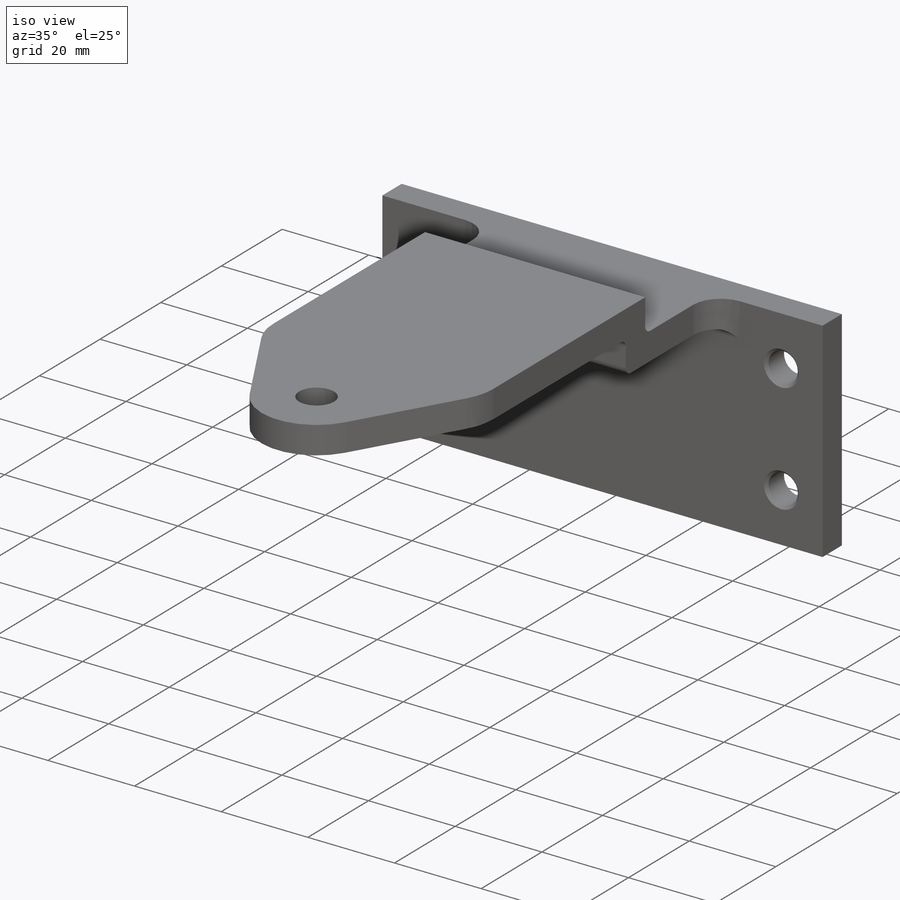
[diagram: iso view]
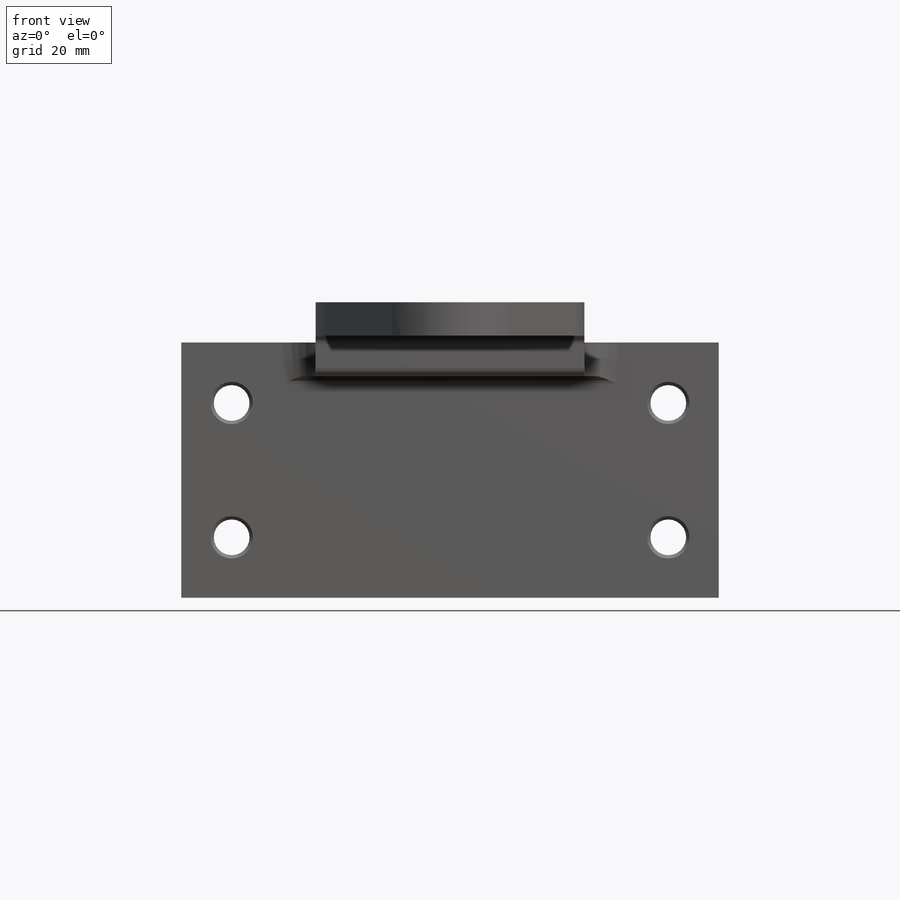
[diagram: front view]
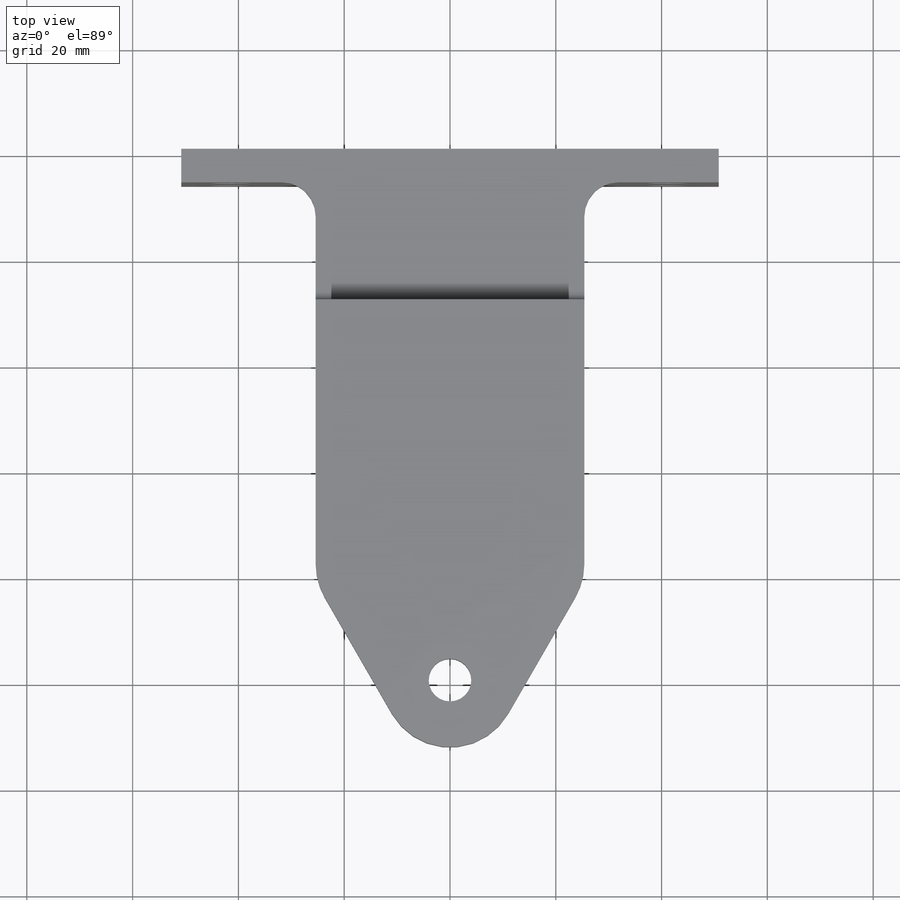
[diagram: top view]
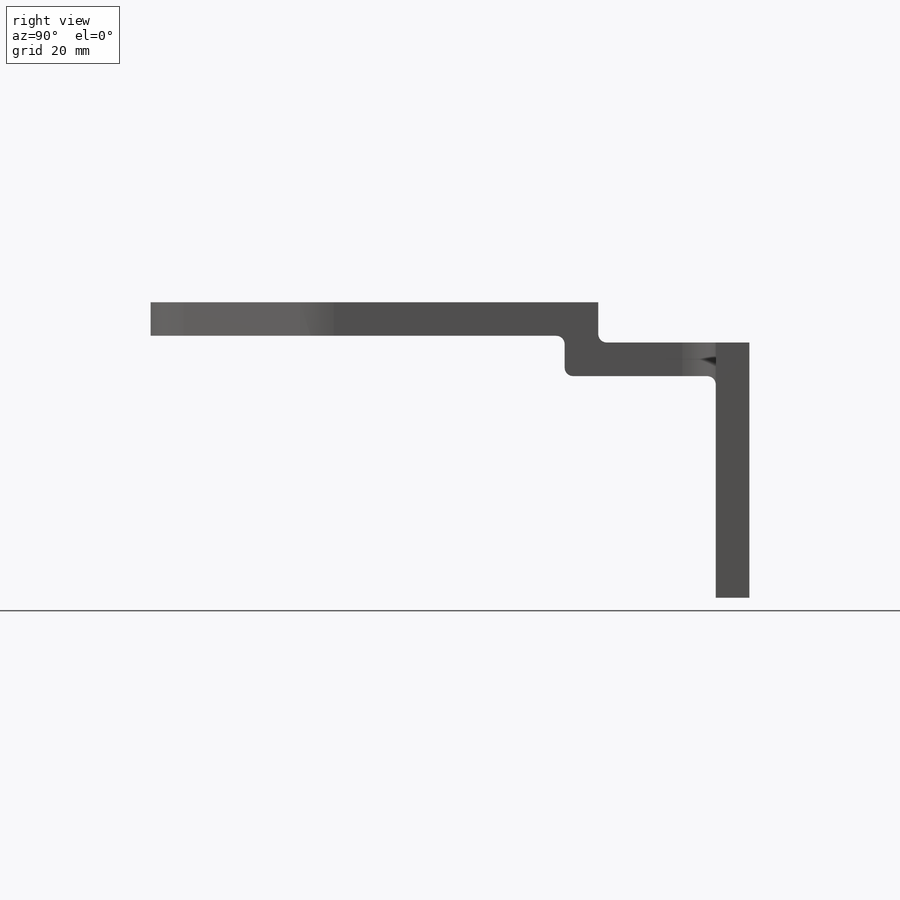
[diagram: right view]
SOLIDWORKS PART (.sldprt)
format: sldprt  version: not decoded by parser v0  size: 252,416 bytes
history: native  units: mm
features: sketch x6, fillet x3, extrude x2, material x1, hole x1, mirror x1 (+11 scaffold rows collapsed)
feature tree (25):
  scaffold x11  (default folders/planes/origin — collapsed)
  material  "6061-T6 (SS)"
  sketch  "Sketch1"  dims[c1.D1=8.0645mm c1.D2=25.4mm c1.D3=50.8mm c1.D4=50.8mm c1.D5=~46.321188mm c2.D5=60.0deg]
  extrude  "Boss-Extrude1"  Depth=6.35mm
  fillet  "Fillet1"  Radius=12.7mm
  sketch  "Sketch2"  dims[c1.D1=49.784mm c1.D2=28.575mm c1.D3=7.62mm c1.D4=31.75mm c2.D3=7.62mm c2.D4=31.75mm c2.D5=6.35mm c2.D6=1.0mm c2.D7=5.0mm]
  sketch  "Sketch3"
  extrude  "Boss-Extrude2"  Depth=25.4mm
  sketch  "Sketch4"  dims[D1=25.4mm D2=9.525mm]
  hole  "1/4 Clearance Hole1"  Diameter=6.7564mm Depth=6.35mm
  sketch  "Sketch6"
  sketch  "Sketch5"  dims[hole-wizard template sketch: 46 standard entries collapsed; hole parameters kept: c15.Thru Hole Dia.=6.7564mm c15.Thru Hole Depth=6.35mm c15.Near C'Sink Dia.=8.0264mm c15.D4=~3.666174mm c15.Near C'Sink Angle=90.0deg c15.Far C'Sink Dia.=8.0264mm c15.D6=~9.919017mm c15.Far C'Sink Angle=90.0deg]
  mirror  "Mirror1"
  fillet  "Fillet2"  Radius=6.35mm
  fillet  "Fillet3"  Radius=1.5875mm
decode coverage: 10 of 13 modeling features carry decoded parameters
note: ~ marks probable driven/reference dimensions
note: suppression state not decoded; provenance and decode notes live in map.json
